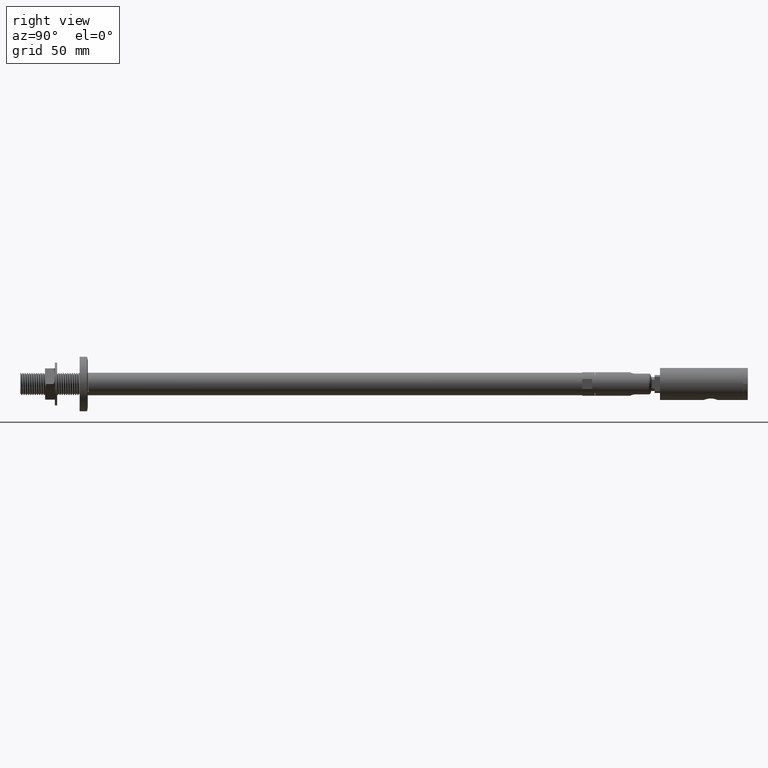
[diagram: clean part render]
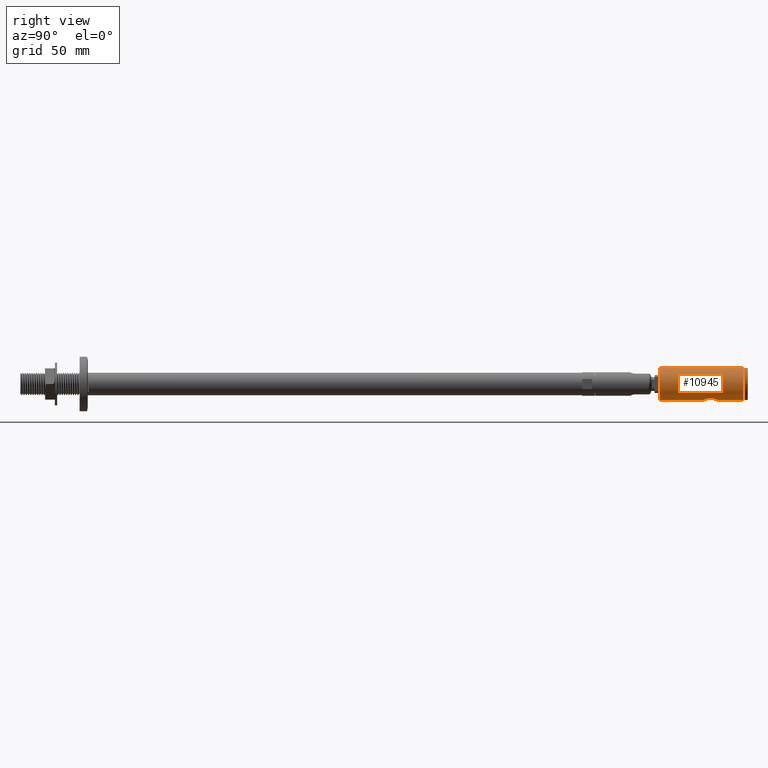
[diagram: same view with one face highlighted and labeled with its STEP entity id]
A machine part, right view. The second image highlights one B-rep face of the part: STEP entity #10945.
In plain terms, the highlighted cylindrical surface (edge-blend (fillet) strip) has radius 7.1 mm, axis along (0, -1, 0).
Its self-contained STEP definition (entity closure, byte-faithful):
#7 = CARTESIAN_POINT ( 'NONE',  ( 8.694992273946207746E-16, 37.00000000000000000, 7.099999999999999645 ) ) ;
#223 = DIRECTION ( 'NONE',  ( 0.000000000000000000, 1.000000000000000000, 0.000000000000000000 ) ) ;
#962 = B_SPLINE_CURVE_WITH_KNOTS ( 'NONE', 3,
 ( #6470, #8192, #5011, #7994, #1867, #19280, #3394, #14541, #19216, #16162, #1941, #11284, #12827, #17769, #11355, #17700, #14477, #16098 ),
 .UNSPECIFIED., .F., .F.,
 ( 4, 2, 2, 2, 2, 2, 2, 2, 4 ),
 ( 0.000000000000000000, 0.0005934299985692234299, 0.001186859997138446860, 0.001780289995707670398, 0.002373719994276893720, 0.002967149992846117041, 0.003560579991415340796, 0.004154009989984564118, 0.004747439988553787439 ),
 .UNSPECIFIED. ) ;
#988 = CARTESIAN_POINT ( 'NONE',  ( 0.000000000000000000, 0.000000000000000000, 0.000000000000000000 ) ) ;
#1454 = CARTESIAN_POINT ( 'NONE',  ( 8.585082295048045420E-14, 19.49999999999903721, 7.100000000000405542 ) ) ;
#1599 = AXIS2_PLACEMENT_3D ( 'NONE', #988, #16949, #7361 ) ;
#1754 = LINE ( 'NONE', #3056, #2751 ) ;
#1852 = CARTESIAN_POINT ( 'NONE',  ( -3.000000000000000000, 22.50000000000000000, 6.435060217278467221 ) ) ;
#1867 = CARTESIAN_POINT ( 'NONE',  ( -2.843510456621343163, 21.52381085231920110, 6.506243375740187851 ) ) ;
#1941 = CARTESIAN_POINT ( 'NONE',  ( -1.833511796037315067, 20.11741613400767292, 6.861219388266752262 ) ) ;
#2300 = ORIENTED_EDGE ( 'NONE', *, *, #4792, .F. ) ;
#2510 = CARTESIAN_POINT ( 'NONE',  ( 0.000000000000000000, 0.000000000000000000, -7.099999999999999645 ) ) ;
#2525 = VERTEX_POINT ( 'NONE', #20058 ) ;
#2565 = DIRECTION ( 'NONE',  ( -0.000000000000000000, -1.000000000000000000, -0.000000000000000000 ) ) ;
#2571 = EDGE_CURVE ( 'NONE', #3523, #5385, #20138, .T. ) ;
#2751 = VECTOR ( 'NONE', #14278, 1000.000000000000000 ) ;
#3056 = CARTESIAN_POINT ( 'NONE',  ( 8.694992273946207746E-16, 37.00000000000000000, 7.099999999999999645 ) ) ;
#3290 = ORIENTED_EDGE ( 'NONE', *, *, #18808, .F. ) ;
#3394 = CARTESIAN_POINT ( 'NONE',  ( -2.599875106431894789, 20.99043817119182975, 6.607885462865362491 ) ) ;
#3495 = EDGE_LOOP ( 'NONE', ( #16474, #3290, #13107, #8163, #18115, #2300, #17422 ) ) ;
#3523 = VERTEX_POINT ( 'NONE', #2510 ) ;
#4399 = VERTEX_POINT ( 'NONE', #19532 ) ;
#4792 = EDGE_CURVE ( 'NONE', #7959, #11156, #962, .T. ) ;
#4986 = LINE ( 'NONE', #20293, #15207 ) ;
#5011 = CARTESIAN_POINT ( 'NONE',  ( -2.980034345647485594, 22.10215321767299557, 6.444471907880007677 ) ) ;
#5030 = EDGE_CURVE ( 'NONE', #4399, #3523, #14248, .T. ) ;
#5125 = CARTESIAN_POINT ( 'NONE',  ( -1.834950804851614992, 24.88135463909969047, 6.860801338392348292 ) ) ;
#5193 = CARTESIAN_POINT ( 'NONE',  ( -2.259672461411677880, 24.48287591032833177, 6.732360976048021861 ) ) ;
#5262 = CARTESIAN_POINT ( 'NONE',  ( -1.336828058275656650, 25.19282421303223174, 6.975420398956391210 ) ) ;
#5385 = VERTEX_POINT ( 'NONE', #17724 ) ;
#5701 = CARTESIAN_POINT ( 'NONE',  ( 0.000000000000000000, 37.00000000000000000, 0.000000000000000000 ) ) ;
#6259 = CYLINDRICAL_SURFACE ( 'NONE', #13332, 7.099999999999999645 ) ;
#6470 = CARTESIAN_POINT ( 'NONE',  ( -3.000000000000000000, 22.50000000000000000, 6.435060217278467221 ) ) ;
#6928 = CARTESIAN_POINT ( 'NONE',  ( -2.692231636999325328, 23.83827248118546649, 6.570291523235696651 ) ) ;
#7287 = DIRECTION ( 'NONE',  ( -0.000000000000000000, -1.000000000000000000, -0.000000000000000000 ) ) ;
#7361 = DIRECTION ( 'NONE',  ( 0.000000000000000000, 0.000000000000000000, 1.000000000000000000 ) ) ;
#7943 = VERTEX_POINT ( 'NONE', #7 ) ;
#7959 = VERTEX_POINT ( 'NONE', #1852 ) ;
#7994 = CARTESIAN_POINT ( 'NONE',  ( -2.902315308254680648, 21.71549211927658973, 6.479844807104851334 ) ) ;
#8163 = ORIENTED_EDGE ( 'NONE', *, *, #2571, .T. ) ;
#8185 = AXIS2_PLACEMENT_3D ( 'NONE', #17299, #223, #18921 ) ;
#8192 = CARTESIAN_POINT ( 'NONE',  ( -3.000000000000000000, 22.29912724355647313, 6.435060217278465444 ) ) ;
#8437 = CARTESIAN_POINT ( 'NONE',  ( -1.511815387919579479, 25.09852046484856203, 6.939168083708694645 ) ) ;
#8473 = FACE_OUTER_BOUND ( 'NONE', #3495, .T. ) ;
#8509 = CARTESIAN_POINT ( 'NONE',  ( -2.901910548897220110, 23.28585754330060453, 6.480026166827760115 ) ) ;
#8738 = CARTESIAN_POINT ( 'NONE',  ( 0.000000000000000000, 37.00000000000000000, -7.099999999999999645 ) ) ;
#9090 = DIRECTION ( 'NONE',  ( 0.000000000000000000, 0.000000000000000000, -1.000000000000000000 ) ) ;
#10121 = CARTESIAN_POINT ( 'NONE',  ( -2.999999999999999112, 22.70060922949038584, 6.435060217278467221 ) ) ;
#10945 = ADVANCED_FACE ( 'NONE', ( #8473 ), #6259, .T. ) ;
#11156 = VERTEX_POINT ( 'NONE', #1454 ) ;
#11284 = CARTESIAN_POINT ( 'NONE',  ( -1.507680908863729297, 19.89896757772172009, 6.940100523564726842 ) ) ;
#11326 = EDGE_CURVE ( 'NONE', #2525, #7959, #20175, .T. ) ;
#11355 = CARTESIAN_POINT ( 'NONE',  ( -0.7837873916696871390, 19.59741958908257686, 7.059300130357863523 ) ) ;
#11675 = CARTESIAN_POINT ( 'NONE',  ( -1.984386601565562902, 24.75834592659091982, 6.818578573295437373 ) ) ;
#12251 = EDGE_CURVE ( 'NONE', #7943, #2525, #4986, .T. ) ;
#12295 = DIRECTION ( 'NONE',  ( -0.000000000000000000, -1.000000000000000000, -0.000000000000000000 ) ) ;
#12827 = CARTESIAN_POINT ( 'NONE',  ( -1.336132877082146342, 19.80687233169414441, 6.975539666663179261 ) ) ;
#13065 = CARTESIAN_POINT ( 'NONE',  ( 8.694973479455262678E-16, 25.50000000000000000, 7.099999999999999645 ) ) ;
#13107 = ORIENTED_EDGE ( 'NONE', *, *, #5030, .T. ) ;
#13263 = CARTESIAN_POINT ( 'NONE',  ( -2.383915459185252494, 24.33150075968555726, 6.688811073827613640 ) ) ;
#13332 = AXIS2_PLACEMENT_3D ( 'NONE', #5701, #7287, #9090 ) ;
#14248 = LINE ( 'NONE', #8738, #15986 ) ;
#14278 = DIRECTION ( 'NONE',  ( -0.000000000000000000, -1.000000000000000000, -0.000000000000000000 ) ) ;
#14477 = CARTESIAN_POINT ( 'NONE',  ( -0.1985874589389721168, 19.49999999999998579, 7.100000000000008527 ) ) ;
#14541 = CARTESIAN_POINT ( 'NONE',  ( -2.382261532481379618, 20.66616318204198421, 6.689419320856711870 ) ) ;
#14732 = CARTESIAN_POINT ( 'NONE',  ( -0.7942645355482732539, 25.41938175754960838, 7.064951510509494881 ) ) ;
#15207 = VECTOR ( 'NONE', #12295, 1000.000000000000000 ) ;
#15986 = VECTOR ( 'NONE', #2565, 1000.000000000000000 ) ;
#16098 = CARTESIAN_POINT ( 'NONE',  ( 8.585082295048045420E-14, 19.49999999999903721, 7.100000000000405542 ) ) ;
#16122 = EDGE_CURVE ( 'NONE', #11156, #5385, #1754, .T. ) ;
#16162 = CARTESIAN_POINT ( 'NONE',  ( -1.984036976614136583, 20.24146564572751927, 6.818660329246044149 ) ) ;
#16474 = ORIENTED_EDGE ( 'NONE', *, *, #12251, .F. ) ;
#16498 = CARTESIAN_POINT ( 'NONE',  ( -2.599461787005681312, 24.01004846517204072, 6.608028822258463997 ) ) ;
#16949 = DIRECTION ( 'NONE',  ( 0.000000000000000000, 1.000000000000000000, 0.000000000000000000 ) ) ;
#17299 = CARTESIAN_POINT ( 'NONE',  ( 0.000000000000000000, 37.00000000000000000, 0.000000000000000000 ) ) ;
#17422 = ORIENTED_EDGE ( 'NONE', *, *, #11326, .F. ) ;
#17700 = CARTESIAN_POINT ( 'NONE',  ( -0.3950518263829695953, 19.51952524391609600, 7.091683513826771090 ) ) ;
#17724 = CARTESIAN_POINT ( 'NONE',  ( 8.694992273946207746E-16, 0.000000000000000000, 7.099999999999999645 ) ) ;
#17769 = CARTESIAN_POINT ( 'NONE',  ( -0.9754697436249665232, 19.65629704745965967, 7.035045379077772054 ) ) ;
#17886 = CARTESIAN_POINT ( 'NONE',  ( -3.000000000000000000, 22.50000000000000000, 6.435060217278467221 ) ) ;
#18027 = CARTESIAN_POINT ( 'NONE',  ( -0.3955633240749260038, 25.50000000000000000, 7.099999999999999645 ) ) ;
#18095 = CARTESIAN_POINT ( 'NONE',  ( -2.844569249804246969, 23.47340135824154927, 6.505787244494785959 ) ) ;
#18115 = ORIENTED_EDGE ( 'NONE', *, *, #16122, .F. ) ;
#18808 = EDGE_CURVE ( 'NONE', #4399, #7943, #19152, .T. ) ;
#18921 = DIRECTION ( 'NONE',  ( 0.000000000000000000, 0.000000000000000000, 1.000000000000000000 ) ) ;
#19152 = CIRCLE ( 'NONE', #8185, 7.099999999999999645 ) ;
#19216 = CARTESIAN_POINT ( 'NONE',  ( -2.257529500964019942, 20.51481972952622712, 6.733059628614846304 ) ) ;
#19280 = CARTESIAN_POINT ( 'NONE',  ( -2.692142293887568982, 21.16176727045461448, 6.570321487624466883 ) ) ;
#19532 = CARTESIAN_POINT ( 'NONE',  ( 0.000000000000000000, 37.00000000000000000, -7.099999999999999645 ) ) ;
#19741 = CARTESIAN_POINT ( 'NONE',  ( -2.979654835681531555, 22.90039227310612446, 6.444647470325518768 ) ) ;
#20058 = CARTESIAN_POINT ( 'NONE',  ( 8.694973479455262678E-16, 25.50000000000000000, 7.099999999999999645 ) ) ;
#20138 = CIRCLE ( 'NONE', #1599, 7.099999999999999645 ) ;
#20175 = B_SPLINE_CURVE_WITH_KNOTS ( 'NONE', 3,
 ( #13065, #18027, #14732, #5262, #8437, #5125, #11675, #5193, #13263, #16498, #6928, #18095, #8509, #19741, #10121, #17886 ),
 .UNSPECIFIED., .F., .F.,
 ( 4, 2, 2, 2, 2, 2, 2, 4 ),
 ( 0.01423397402154099635, 0.01541927696532696158, 0.01601192843721994594, 0.01660457990911293202, 0.01719723138100591464, 0.01778988285289890073, 0.01838253432479188682, 0.01897518579668486943 ),
 .UNSPECIFIED. ) ;
#20293 = CARTESIAN_POINT ( 'NONE',  ( 8.694992273946207746E-16, 37.00000000000000000, 7.099999999999999645 ) ) ;